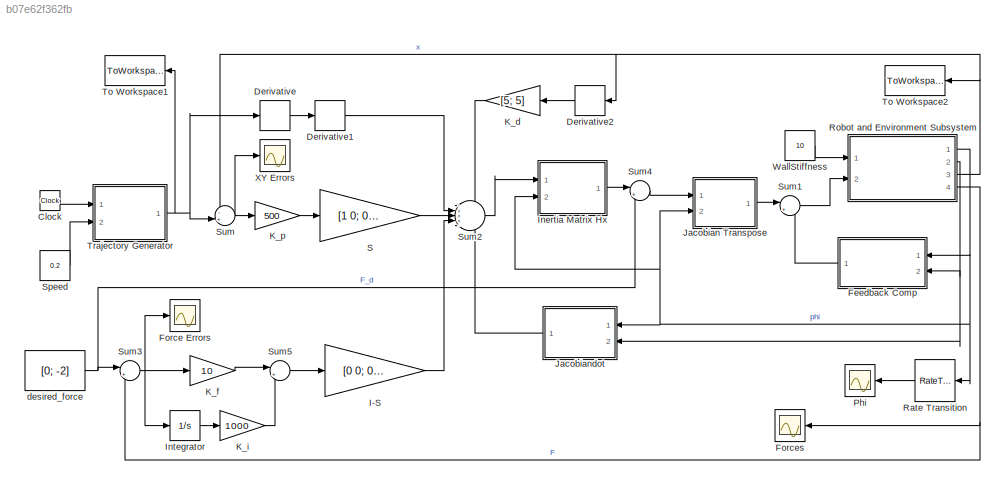
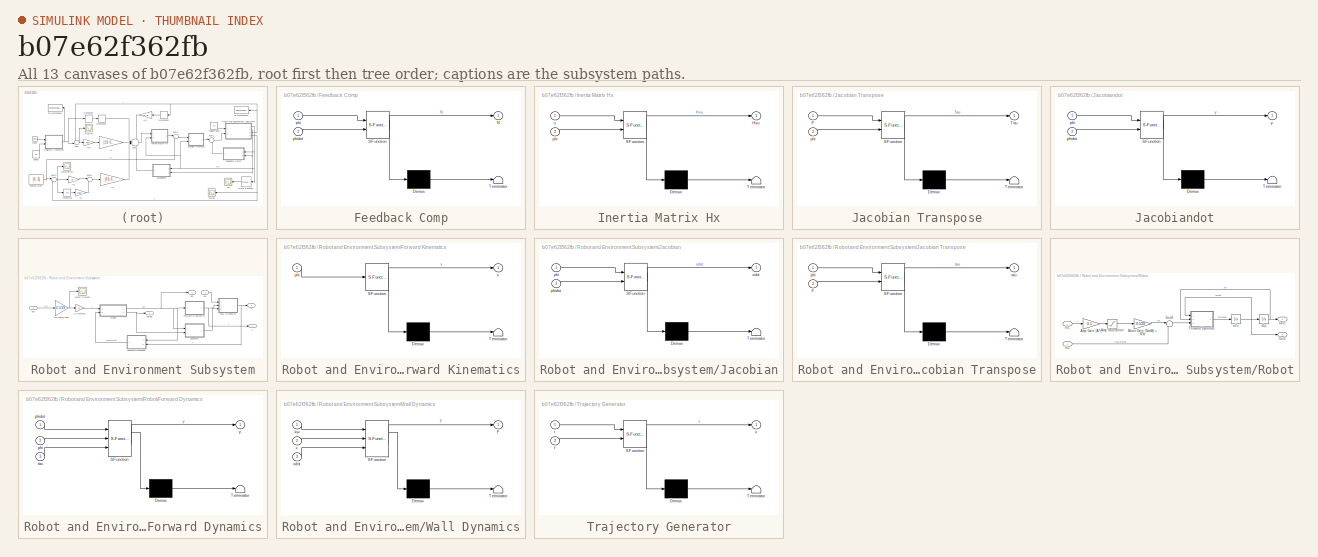
[diagram: thumbnail index - all 13 canvases of the model, root first then tree order]
MODEL slx_b07e62f362fb
KIND model
CONFIG AbsTol = auto
CONFIG EnableMultiTasking = on
CONFIG FixedStep = .002
CONFIG MaxStep = auto
CONFIG MinStep = auto
CONFIG RelTol = 1e-3
CONFIG SampleTimeConstraint = Unconstrained
CONFIG Solver = ode45
CONFIG SolverName = ode45
CONFIG StartTime = 0.0
CONFIG StopTime = 10
BLOCK [Gain]  K_p
  Gain = 500
  OutDataTypeStr = Inherit: Inherit via internal rule
  ParamDataTypeStr = Inherit: Inherit via internal rule
  SaturateOnIntegerOverflow = off
BLOCK [Clock] Clock
BLOCK [Derivative] Derivative
BLOCK [Derivative] Derivative1
BLOCK [Derivative] Derivative2
BLOCK [SubSystem] Feedback Comp
  ErrorFcn = Stateflow.Translate.translate
  PermitHierarchicalResolution = ExplicitOnly
  Ports = [2, 1]
  RequestExecContextInheritance = off
  SFBlockType = MATLAB Function
  TreatAsAtomicUnit = on
BLOCK [Demux] Feedback Comp/ Demux 
  Outputs = 1
  Ports = [1, 1]
BLOCK [S-Function] Feedback Comp/ SFunction 
  EnableBusSupport = on
  FunctionName = sf_sfun
  PortCounts = [2 2]
  Ports = [2, 2]
  SFcnIsStateOwnerBlock = off
  SFunctionDeploymentMode = off
  Tag = Stateflow S-Function hybrid_pi_control 4
BLOCK [Terminator] Feedback Comp/ Terminator 
BLOCK [Outport] Feedback Comp/N
  IconDisplay = Port number
BLOCK [Inport] Feedback Comp/phi
  IconDisplay = Port number
BLOCK [Inport] Feedback Comp/phidot
  IconDisplay = Port number
  Port = 2
BLOCK [Scope] Force Errors
  Floating = off
  NumInputPorts = 1
  Ports = [1]
  ScopeSpecificationString = Simulink.scopes.TimeScopeBlockCfg('CurrentConfiguration', extmgr.ConfigurationSet(extmgr.Configuration('Core','General UI',true),extmgr.Configuration('Core','Source UI',true),extmgr.Configuration('Sources','WiredSimulink',true,'DataLogging',true,'DataLoggingVariableName','F_errors','DataLoggingSaveFormat','StructureWithTime','DataLoggingDecimation','1','DataLoggingDecimateData',true),extmgr.Config...<+1654ch>
BLOCK [Scope] Forces
  Floating = off
  NumInputPorts = 1
  Ports = [1]
  ScopeSpecificationString = Simulink.scopes.TimeScopeBlockCfg('CurrentConfiguration', extmgr.ConfigurationSet(extmgr.Configuration('Core','General UI',true),extmgr.Configuration('Core','Source UI',true),extmgr.Configuration('Sources','WiredSimulink',true,'DataLogging',true,'DataLoggingVariableName','F','DataLoggingSaveFormat','Structure','DataLoggingDecimation','1','DataLoggingDecimateData',true),extmgr.Configuration('Visual...<+1675ch>
BLOCK [Gain] I-S
  Gain = [0 0; 0 1]
  Multiplication = Matrix(K*u)
  OutDataTypeStr = Inherit: Inherit via internal rule
  ParamDataTypeStr = Inherit: Inherit via internal rule
  SaturateOnIntegerOverflow = off
BLOCK [SubSystem] Inertia Matrix Hx
  ErrorFcn = Stateflow.Translate.translate
  PermitHierarchicalResolution = ExplicitOnly
  Ports = [2, 1]
  RequestExecContextInheritance = off
  SFBlockType = MATLAB Function
  TreatAsAtomicUnit = on
BLOCK [Demux] Inertia Matrix Hx/ Demux 
  Outputs = 1
  Ports = [1, 1]
BLOCK [S-Function] Inertia Matrix Hx/ SFunction 
  EnableBusSupport = on
  FunctionName = sf_sfun
  PortCounts = [2 2]
  Ports = [2, 2]
  SFcnIsStateOwnerBlock = off
  SFunctionDeploymentMode = off
  Tag = Stateflow S-Function hybrid_pi_control 3
BLOCK [Terminator] Inertia Matrix Hx/ Terminator 
BLOCK [Outport] Inertia Matrix Hx/Hxu
  IconDisplay = Port number
BLOCK [Inport] Inertia Matrix Hx/phi
  IconDisplay = Port number
  Port = 2
BLOCK [Inport] Inertia Matrix Hx/u
  IconDisplay = Port number
BLOCK [Integrator] Integrator
  Ports = [1, 1]
BLOCK [SubSystem] Jacobian Transpose
  ErrorFcn = Stateflow.Translate.translate
  PermitHierarchicalResolution = ExplicitOnly
  Ports = [2, 1]
  RequestExecContextInheritance = off
  SFBlockType = MATLAB Function
  TreatAsAtomicUnit = on
BLOCK [Demux] Jacobian Transpose/ Demux 
  Outputs = 1
  Ports = [1, 1]
BLOCK [S-Function] Jacobian Transpose/ SFunction 
  EnableBusSupport = on
  FunctionName = sf_sfun
  PortCounts = [2 2]
  Ports = [2, 2]
  SFcnIsStateOwnerBlock = off
  SFunctionDeploymentMode = off
  Tag = Stateflow S-Function hybrid_pi_control 6
BLOCK [Terminator] Jacobian Transpose/ Terminator 
BLOCK [Inport] Jacobian Transpose/F
  IconDisplay = Port number
BLOCK [Outport] Jacobian Transpose/Tau
  IconDisplay = Port number
BLOCK [Inport] Jacobian Transpose/phi
  IconDisplay = Port number
  Port = 2
BLOCK [SubSystem] Jacobiandot
  ErrorFcn = Stateflow.Translate.translate
  PermitHierarchicalResolution = ExplicitOnly
  Ports = [2, 1]
  RequestExecContextInheritance = off
  SFBlockType = MATLAB Function
  TreatAsAtomicUnit = on
BLOCK [Demux] Jacobiandot/ Demux 
  Outputs = 1
  Ports = [1, 1]
BLOCK [S-Function] Jacobiandot/ SFunction 
  EnableBusSupport = on
  FunctionName = sf_sfun
  PortCounts = [2 2]
  Ports = [2, 2]
  SFcnIsStateOwnerBlock = off
  SFunctionDeploymentMode = off
  Tag = Stateflow S-Function hybrid_pi_control 8
BLOCK [Terminator] Jacobiandot/ Terminator 
BLOCK [Inport] Jacobiandot/phi
  IconDisplay = Port number
BLOCK [Inport] Jacobiandot/phidot
  IconDisplay = Port number
  Port = 2
BLOCK [Outport] Jacobiandot/y
  IconDisplay = Port number
BLOCK [Gain] K_d
  Gain = [5; 5]
  OutDataTypeStr = Inherit: Inherit via internal rule
  ParamDataTypeStr = Inherit: Inherit via internal rule
  SaturateOnIntegerOverflow = off
BLOCK [Gain] K_f
  Gain = 10
  OutDataTypeStr = Inherit: Inherit via internal rule
  ParamDataTypeStr = Inherit: Inherit via internal rule
  SaturateOnIntegerOverflow = off
BLOCK [Gain] K_i
  Gain = 1000
  OutDataTypeStr = Inherit: Inherit via internal rule
  ParamDataTypeStr = Inherit: Inherit via internal rule
  SaturateOnIntegerOverflow = off
BLOCK [Scope] Phi
  AttributesFormatString = SampleTime =%<SampleTime>
  Floating = off
  NumInputPorts = 1
  Ports = [1]
  ScopeSpecificationString = Simulink.scopes.TimeScopeBlockCfg('CurrentConfiguration', extmgr.ConfigurationSet(extmgr.Configuration('Core','General UI',true),extmgr.Configuration('Core','Source UI',true),extmgr.Configuration('Sources','WiredSimulink',true,'DataLoggingVariableName','ScopeData1','DataLoggingSaveFormat','StructureWithTime','DataLoggingDecimation','10','DataLoggingDecimateData',true,'SampleTime','0.02'),extmgr.Co...<+1626ch>
BLOCK [RateTransition] Rate Transition
  OutPortSampleTime = 0.05
  OutPortSampleTimeMultiple = 10
  OutPortSampleTimeOpt = Inherit
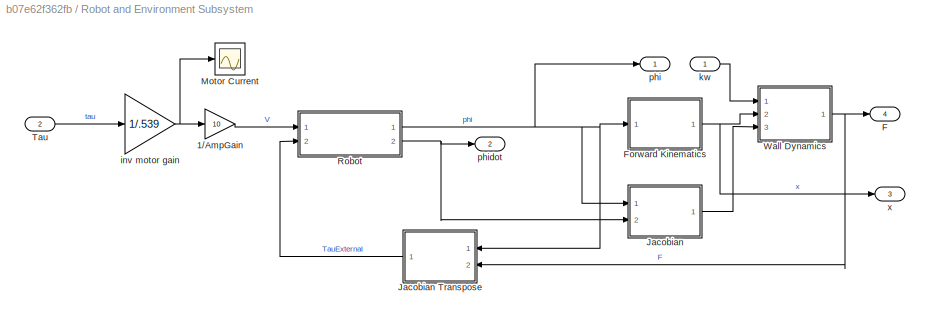
BLOCK [SubSystem] Robot and Environment Subsystem
  Ports = [2, 4]
  RequestExecContextInheritance = off
BLOCK [Gain] Robot and Environment Subsystem/1//AmpGain
  Gain = 10
  OutDataTypeStr = Inherit: Inherit via internal rule
  ParamDataTypeStr = Inherit: Inherit via internal rule
  SaturateOnIntegerOverflow = off
BLOCK [Outport] Robot and Environment Subsystem/F
  IconDisplay = Port number
  Port = 4
BLOCK [SubSystem] Robot and Environment Subsystem/Forward Kinematics
  ErrorFcn = Stateflow.Translate.translate
  PermitHierarchicalResolution = ExplicitOnly
  Ports = [1, 1]
  RequestExecContextInheritance = off
  SFBlockType = MATLAB Function
  TreatAsAtomicUnit = on
BLOCK [Demux] Robot and Environment Subsystem/Forward Kinematics/ Demux 
  Outputs = 1
  Ports = [1, 1]
BLOCK [S-Function] Robot and Environment Subsystem/Forward Kinematics/ SFunction 
  EnableBusSupport = on
  FunctionName = sf_sfun
  PortCounts = [1 2]
  Ports = [1, 2]
  SFcnIsStateOwnerBlock = off
  SFunctionDeploymentMode = off
  Tag = Stateflow S-Function hybrid_pi_control 9
BLOCK [Terminator] Robot and Environment Subsystem/Forward Kinematics/ Terminator 
BLOCK [Inport] Robot and Environment Subsystem/Forward Kinematics/phi
  IconDisplay = Port number
BLOCK [Outport] Robot and Environment Subsystem/Forward Kinematics/x
  IconDisplay = Port number
BLOCK [SubSystem] Robot and Environment Subsystem/Jacobian
  ErrorFcn = Stateflow.Translate.translate
  PermitHierarchicalResolution = ExplicitOnly
  Ports = [2, 1]
  RequestExecContextInheritance = off
  SFBlockType = MATLAB Function
  TreatAsAtomicUnit = on
BLOCK [SubSystem] Robot and Environment Subsystem/Jacobian Transpose
  ErrorFcn = Stateflow.Translate.translate
  PermitHierarchicalResolution = ExplicitOnly
  Ports = [2, 1]
  RequestExecContextInheritance = off
  SFBlockType = MATLAB Function
  TreatAsAtomicUnit = on
BLOCK [Demux] Robot and Environment Subsystem/Jacobian Transpose/ Demux 
  Outputs = 1
  Ports = [1, 1]
BLOCK [S-Function] Robot and Environment Subsystem/Jacobian Transpose/ SFunction 
  EnableBusSupport = on
  FunctionName = sf_sfun
  PortCounts = [2 2]
  Ports = [2, 2]
  SFcnIsStateOwnerBlock = off
  SFunctionDeploymentMode = off
  Tag = Stateflow S-Function hybrid_pi_control 2
BLOCK [Terminator] Robot and Environment Subsystem/Jacobian Transpose/ Terminator 
BLOCK [Inport] Robot and Environment Subsystem/Jacobian Transpose/F
  IconDisplay = Port number
  Port = 2
BLOCK [Inport] Robot and Environment Subsystem/Jacobian Transpose/phi
  IconDisplay = Port number
BLOCK [Outport] Robot and Environment Subsystem/Jacobian Transpose/tau
  IconDisplay = Port number
BLOCK [Demux] Robot and Environment Subsystem/Jacobian/ Demux 
  Outputs = 1
  Ports = [1, 1]
BLOCK [S-Function] Robot and Environment Subsystem/Jacobian/ SFunction 
  EnableBusSupport = on
  FunctionName = sf_sfun
  PortCounts = [2 2]
  Ports = [2, 2]
  SFcnIsStateOwnerBlock = off
  SFunctionDeploymentMode = off
  Tag = Stateflow S-Function hybrid_pi_control 1
BLOCK [Terminator] Robot and Environment Subsystem/Jacobian/ Terminator 
BLOCK [Inport] Robot and Environment Subsystem/Jacobian/phi
  IconDisplay = Port number
BLOCK [Inport] Robot and Environment Subsystem/Jacobian/phidot
  IconDisplay = Port number
  Port = 2
BLOCK [Outport] Robot and Environment Subsystem/Jacobian/xdot
  IconDisplay = Port number
BLOCK [Scope] Robot and Environment Subsystem/Motor Current
  Floating = off
  NumInputPorts = 1
  Ports = [1]
  ScopeSpecificationString = Simulink.scopes.TimeScopeBlockCfg('CurrentConfiguration', extmgr.ConfigurationSet(extmgr.Configuration('Core','General UI',true),extmgr.Configuration('Core','Source UI',true),extmgr.Configuration('Sources','WiredSimulink',true,'DataLoggingVariableName','ScopeData1','DataLoggingSaveFormat','StructureWithTime','DataLoggingDecimation','1','DataLoggingDecimateData',true),extmgr.Configuration('Visuals'...<+1770ch>
BLOCK [SubSystem] Robot and Environment Subsystem/Robot
  Ports = [2, 2]
  RequestExecContextInheritance = off
BLOCK [Gain] Robot and Environment Subsystem/Robot/Amp Gain (A//V)
  Gain = 0.1
  OutDataTypeStr = Inherit: Inherit via internal rule
  ParamDataTypeStr = Inherit: Inherit via internal rule
  SaturateOnIntegerOverflow = off
BLOCK [Saturate] Robot and Environment Subsystem/Robot/Amp Saturation
  InputPortMap = u0
  LowerLimit = -1
  Ports = [1, 1]
  UpperLimit = 1
  ZeroCross = off
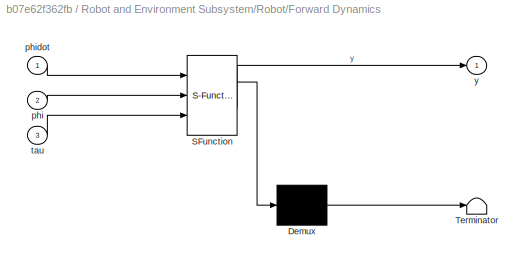
BLOCK [SubSystem] Robot and Environment Subsystem/Robot/Forward Dynamics
  ErrorFcn = Stateflow.Translate.translate
  PermitHierarchicalResolution = ExplicitOnly
  Ports = [3, 1]
  RequestExecContextInheritance = off
  SFBlockType = MATLAB Function
  TreatAsAtomicUnit = on
BLOCK [Demux] Robot and Environment Subsystem/Robot/Forward Dynamics/ Demux 
  Outputs = 1
  Ports = [1, 1]
BLOCK [S-Function] Robot and Environment Subsystem/Robot/Forward Dynamics/ SFunction 
  EnableBusSupport = on
  FunctionName = sf_sfun
  PortCounts = [3 2]
  Ports = [3, 2]
  SFcnIsStateOwnerBlock = off
  SFunctionDeploymentMode = off
  Tag = Stateflow S-Function hybrid_pi_control 5
BLOCK [Terminator] Robot and Environment Subsystem/Robot/Forward Dynamics/ Terminator 
BLOCK [Inport] Robot and Environment Subsystem/Robot/Forward Dynamics/phi
  IconDisplay = Port number
  Port = 2
BLOCK [Inport] Robot and Environment Subsystem/Robot/Forward Dynamics/phidot
  IconDisplay = Port number
BLOCK [Inport] Robot and Environment Subsystem/Robot/Forward Dynamics/tau
  IconDisplay = Port number
  Port = 3
BLOCK [Outport] Robot and Environment Subsystem/Robot/Forward Dynamics/y
  IconDisplay = Port number
BLOCK [Inport] Robot and Environment Subsystem/Robot/In1
  IconDisplay = Port number
BLOCK [Inport] Robot and Environment Subsystem/Robot/In2
  IconDisplay = Port number
  Port = 2
BLOCK [Gain] Robot and Environment Subsystem/Robot/Motor Gain (Nm//A) = N*kt
  Gain = 0.539
  OutDataTypeStr = Inherit: Inherit via internal rule
  ParamDataTypeStr = Inherit: Inherit via internal rule
  SaturateOnIntegerOverflow = off
BLOCK [Outport] Robot and Environment Subsystem/Robot/Out1
  IconDisplay = Port number
BLOCK [Outport] Robot and Environment Subsystem/Robot/Out2
  IconDisplay = Port number
  Port = 2
BLOCK [Sum] Robot and Environment Subsystem/Robot/Sum2
  IconShape = round
  InputSameDT = off
  Inputs = |+-
  OutDataTypeStr = Inherit: Inherit via internal rule
  Ports = [2, 1]
  SaturateOnIntegerOverflow = off
BLOCK [Integrator] Robot and Environment Subsystem/Robot/a2v
  Ports = [1, 1]
BLOCK [Integrator] Robot and Environment Subsystem/Robot/v2p
  InitialCondition = [0.3109;-0.4922]
  Ports = [1, 1]
BLOCK [Inport] Robot and Environment Subsystem/Tau
  IconDisplay = Port number
  Port = 2
BLOCK [SubSystem] Robot and Environment Subsystem/Wall Dynamics
  ErrorFcn = Stateflow.Translate.translate
  PermitHierarchicalResolution = ExplicitOnly
  Ports = [3, 1]
  RequestExecContextInheritance = off
  SFBlockType = MATLAB Function
  TreatAsAtomicUnit = on
BLOCK [Demux] Robot and Environment Subsystem/Wall Dynamics/ Demux 
  Outputs = 1
  Ports = [1, 1]
BLOCK [S-Function] Robot and Environment Subsystem/Wall Dynamics/ SFunction 
  EnableBusSupport = on
  FunctionName = sf_sfun
  PortCounts = [3 2]
  Ports = [3, 2]
  SFcnIsStateOwnerBlock = off
  SFunctionDeploymentMode = off
  Tag = Stateflow S-Function hybrid_pi_control 10
BLOCK [Terminator] Robot and Environment Subsystem/Wall Dynamics/ Terminator 
BLOCK [Outport] Robot and Environment Subsystem/Wall Dynamics/F
  IconDisplay = Port number
BLOCK [Inport] Robot and Environment Subsystem/Wall Dynamics/kw
  IconDisplay = Port number
BLOCK [Inport] Robot and Environment Subsystem/Wall Dynamics/x
  IconDisplay = Port number
  Port = 2
BLOCK [Inport] Robot and Environment Subsystem/Wall Dynamics/xdot
  IconDisplay = Port number
  Port = 3
BLOCK [Gain] Robot and Environment Subsystem/inv motor gain
  Gain = 1/.539
  OutDataTypeStr = Inherit: Inherit via internal rule
  ParamDataTypeStr = Inherit: Inherit via internal rule
  SaturateOnIntegerOverflow = off
BLOCK [Inport] Robot and Environment Subsystem/kw
  IconDisplay = Port number
BLOCK [Outport] Robot and Environment Subsystem/phi
  IconDisplay = Port number
BLOCK [Outport] Robot and Environment Subsystem/phidot
  IconDisplay = Port number
  Port = 2
BLOCK [Outport] Robot and Environment Subsystem/x
  IconDisplay = Port number
  Port = 3
BLOCK [Gain] S
  Gain = [1 0; 0 0]
  Multiplication = Matrix(K*u)
  OutDataTypeStr = Inherit: Inherit via internal rule
  ParamDataTypeStr = Inherit: Inherit via internal rule
  SaturateOnIntegerOverflow = off
BLOCK [Constant] Speed
  AttributesFormatString = (circles/sec)
  Value = 0.2
BLOCK [Sum] Sum
  IconShape = round
  InputSameDT = off
  Inputs = -+|
  OutDataTypeStr = Inherit: Inherit via internal rule
  Ports = [2, 1]
  SaturateOnIntegerOverflow = off
BLOCK [Sum] Sum1
  IconShape = round
  InputSameDT = off
  Inputs = |++
  OutDataTypeStr = Inherit: Inherit via internal rule
  Ports = [2, 1]
  SaturateOnIntegerOverflow = off
BLOCK [Sum] Sum2
  IconShape = round
  InputSameDT = off
  Inputs = -+++-
  OutDataTypeStr = Inherit: Inherit via internal rule
  Ports = [5, 1]
  SaturateOnIntegerOverflow = off
BLOCK [Sum] Sum3
  IconShape = round
  InputSameDT = off
  Inputs = |+-
  OutDataTypeStr = Inherit: Inherit via internal rule
  Ports = [2, 1]
  SaturateOnIntegerOverflow = off
BLOCK [Sum] Sum4
  IconShape = round
  InputSameDT = off
  Inputs = |++
  OutDataTypeStr = Inherit: Inherit via internal rule
  Ports = [2, 1]
  SaturateOnIntegerOverflow = off
BLOCK [Sum] Sum5
  IconShape = round
  InputSameDT = off
  Inputs = |++
  OutDataTypeStr = Inherit: Inherit via internal rule
  Ports = [2, 1]
  SaturateOnIntegerOverflow = off
BLOCK [ToWorkspace] To Workspace1
  MaxDataPoints = inf
  Ports = [1]
  SampleTime = -1
  VariableName = xy_d
BLOCK [ToWorkspace] To Workspace2
  MaxDataPoints = inf
  Ports = [1]
  SampleTime = -1
  VariableName = xy
BLOCK [SubSystem] Trajectory Generator
  ErrorFcn = Stateflow.Translate.translate
  PermitHierarchicalResolution = ExplicitOnly
  Ports = [2, 1]
  RequestExecContextInheritance = off
  SFBlockType = MATLAB Function
  TreatAsAtomicUnit = on
BLOCK [Demux] Trajectory Generator/ Demux 
  Outputs = 1
  Ports = [1, 1]
BLOCK [S-Function] Trajectory Generator/ SFunction 
  EnableBusSupport = on
  FunctionName = sf_sfun
  PortCounts = [2 2]
  Ports = [2, 2]
  SFcnIsStateOwnerBlock = off
  SFunctionDeploymentMode = off
  Tag = Stateflow S-Function hybrid_pi_control 7
BLOCK [Terminator] Trajectory Generator/ Terminator 
BLOCK [Inport] Trajectory Generator/f
  IconDisplay = Port number
  Port = 2
BLOCK [Inport] Trajectory Generator/t
  IconDisplay = Port number
BLOCK [Outport] Trajectory Generator/x
  IconDisplay = Port number
BLOCK [Constant] WallStiffness
  AttributesFormatString = (N/mm)
  Value = 10
BLOCK [Scope] XY Errors
  Floating = off
  NumInputPorts = 1
  Ports = [1]
  ScopeSpecificationString = Simulink.scopes.TimeScopeBlockCfg('CurrentConfiguration', extmgr.ConfigurationSet(extmgr.Configuration('Core','General UI',true),extmgr.Configuration('Core','Source UI',true),extmgr.Configuration('Sources','WiredSimulink',true,'DataLogging',true,'DataLoggingVariableName','xy_errors','DataLoggingSaveFormat','StructureWithTime','DataLoggingDecimation','1','DataLoggingDecimateData',true),extmgr.Confi...<+1652ch>
BLOCK [Constant] desired_force
  Value = [0; -2]
LINE  K_p:1 -> S:1
LINE Clock:1 -> Trajectory Generator:1
LINE Derivative1:1 -> Sum2:2
LINE Derivative2:1 -> K_d:1
LINE Derivative:1 -> Derivative1:1
LINE Feedback Comp:1 -> Sum1:2
LINE I-S:1 -> Sum2:4
LINE Inertia Matrix Hx:1 -> Sum4:1
LINE Integrator:1 -> K_i:1
LINE Jacobian Transpose:1 -> Sum1:1
LINE Jacobiandot:1 -> Sum2:5
LINE K_d:1 -> Sum2:1
LINE K_f:1 -> Sum5:1
LINE K_i:1 -> Sum5:2
LINE Rate Transition:1 -> Phi:1
LINE Robot and Environment Subsystem/1//AmpGain:1 -> Robot and Environment Subsystem/Robot:1
NET Robot and Environment Subsystem/Forward Kinematics:1 -> Robot and Environment Subsystem/Wall Dynamics:2, Robot and Environment Subsystem/x:1
LINE Robot and Environment Subsystem/Jacobian Transpose:1 -> Robot and Environment Subsystem/Robot:2
LINE Robot and Environment Subsystem/Jacobian:1 -> Robot and Environment Subsystem/Wall Dynamics:3
LINE Robot and Environment Subsystem/Robot/Amp Gain (A//V):1 -> Robot and Environment Subsystem/Robot/Amp Saturation:1
LINE Robot and Environment Subsystem/Robot/Amp Saturation:1 -> Robot and Environment Subsystem/Robot/Motor Gain (Nm//A) = N*kt:1
LINE Robot and Environment Subsystem/Robot/Forward Dynamics:1 -> Robot and Environment Subsystem/Robot/a2v:1
LINE Robot and Environment Subsystem/Robot/In1:1 -> Robot and Environment Subsystem/Robot/Amp Gain (A//V):1
LINE Robot and Environment Subsystem/Robot/In2:1 -> Robot and Environment Subsystem/Robot/Sum2:2
LINE Robot and Environment Subsystem/Robot/Motor Gain (Nm//A) = N*kt:1 -> Robot and Environment Subsystem/Robot/Sum2:1
LINE Robot and Environment Subsystem/Robot/Sum2:1 -> Robot and Environment Subsystem/Robot/Forward Dynamics:3
NET Robot and Environment Subsystem/Robot/a2v:1 -> Robot and Environment Subsystem/Robot/Forward Dynamics:1, Robot and Environment Subsystem/Robot/Out2:1, Robot and Environment Subsystem/Robot/v2p:1
NET Robot and Environment Subsystem/Robot/v2p:1 -> Robot and Environment Subsystem/Robot/Forward Dynamics:2, Robot and Environment Subsystem/Robot/Out1:1
NET Robot and Environment Subsystem/Robot:1 -> Robot and Environment Subsystem/Forward Kinematics:1, Robot and Environment Subsystem/Jacobian Transpose:1, Robot and Environment Subsystem/Jacobian:1, Robot and Environment Subsystem/phi:1
NET Robot and Environment Subsystem/Robot:2 -> Robot and Environment Subsystem/Jacobian:2, Robot and Environment Subsystem/phidot:1
LINE Robot and Environment Subsystem/Tau:1 -> Robot and Environment Subsystem/inv motor gain:1
NET Robot and Environment Subsystem/Wall Dynamics:1 -> Robot and Environment Subsystem/F:1, Robot and Environment Subsystem/Jacobian Transpose:2
NET Robot and Environment Subsystem/inv motor gain:1 -> Robot and Environment Subsystem/1//AmpGain:1, Robot and Environment Subsystem/Motor Current:1
LINE Robot and Environment Subsystem/kw:1 -> Robot and Environment Subsystem/Wall Dynamics:1
NET Robot and Environment Subsystem:1 -> Feedback Comp:1, Inertia Matrix Hx:2, Jacobian Transpose:2, Jacobiandot:1, Rate Transition:1
NET Robot and Environment Subsystem:2 -> Feedback Comp:2, Jacobiandot:2
NET Robot and Environment Subsystem:3 -> Derivative2:1, Sum:1, To Workspace2:1
NET Robot and Environment Subsystem:4 -> Forces:1, Sum3:2
LINE S:1 -> Sum2:3
LINE Speed:1 -> Trajectory Generator:2
LINE Sum1:1 -> Robot and Environment Subsystem:2
LINE Sum2:1 -> Inertia Matrix Hx:1
NET Sum3:1 -> Force Errors:1, Integrator:1, K_f:1
LINE Sum4:1 -> Jacobian Transpose:1
LINE Sum5:1 -> I-S:1
NET Sum:1 ->  K_p:1, XY Errors:1
NET Trajectory Generator:1 -> Derivative:1, Sum:2, To Workspace1:1
LINE WallStiffness:1 -> Robot and Environment Subsystem:1
NET desired_force:1 -> Sum3:1, Sum4:2
note: NET lines group one-source signal fan-out (src -> all destinations, sorted); 1:1 wires keep LINE
CHART Robot and Environment
Subsystem/Jacobian states=1 transitions=1
  STATE_LABEL 'eML_blk_kernel()'
  STATE_LABEL 'SCRIPT:\nfunction xdot = fcn(phi, phidot)\n% This block supports an embeddable subset of the MATLAB language.\n% See the help menu for details. \na1=0.15;\na2=0.15;\n\nJ11 = -a1*sin(phi(1));\nJ12 = -a2*sin(phi(2));\nJ21 = a1*cos(phi(1));\nJ22 = a2*cos(phi(2));\n\nJ = [J11 J12; J21 J22];\n\nxdot = J*phidot;\n'
CHART Robot and Environment
Subsystem/Jacobian
Transpose states=1 transitions=1
  STATE_LABEL 'eML_blk_kernel()'
  STATE_LABEL "SCRIPT:\nfunction tau = fcn(phi, F)\n% This block supports an embeddable subset of the MATLAB language.\n% See the help menu for details. \na1=0.15;\na2=0.15;\n\nJ11 = -a1*sin(phi(1));\nJ12 = -a2*sin(phi(2));\nJ21 = a1*cos(phi(1));\nJ22 = a2*cos(phi(2));\n\nJ = [J11 J12; J21 J22];\n\ntau = J'*F;\n"
CHART Inertia Matrix
Hx states=1 transitions=1
  STATE_LABEL 'eML_blk_kernel()'
  STATE_LABEL 'SCRIPT:\nfunction Hxu = fcn(u,phi)\n% This block supports an embeddable subset of the MATLAB language.\n% See the help menu for details. \n\n\na1 = 0.15;  % link 1 length\na2 = 0.15;  % link 2 length\nm1 = 0.092;  % link 1 mass  \nm2 = 0.077; % link 2 mas\nr01 = 0.062; % link 1 center of mass\nr12 = 0.036; % link 2 COM\nI1 = 0.64e-3;  % link 1 inertia\nI2 = 0.30e-3;  % link 2 inertia\nJm1 = 0.65e-6; % motor ine...<+446ch>'
CHART Feedback Comp states=1 transitions=1
  STATE_LABEL 'eML_blk_kernel()'
  STATE_LABEL 'SCRIPT:\nfunction N = fcn(phi, phidot)\n% This block supports an embeddable subset of the MATLAB language.\n% See the help menu for details. \n\n\na1 = 0.15;  % link 1 length\na2 = 0.15;  % link 2 length\nm1 = 0.092;  % link 1 mass  \nm2 = 0.077; % link 2 mas\nr01 = 0.062; % link 1 center of mass\nr12 = 0.036; % link 2 COM\nI1 = 0.64e-3;  % link 1 inertia\nI2 = 0.30e-3;  % link 2 inertia\nJm1 = 0.65e-6; % motor...<+539ch>'
CHART Robot and Environment
Subsystem/Robot/Forward
Dynamics states=1 transitions=1
  STATE_LABEL 'eML_blk_kernel()'
  STATE_LABEL 'SCRIPT:\nfunction y = fcn(phidot,phi,tau)\n% This block supports an embeddable subset of the MATLAB language.\n% See the help menu for details. \n\na1 = 0.15;  % link 1 length\na2 = 0.15;  % link 2 length\nm1 = 0.092;  % link 1 mass  \nm2 = 0.077; % link 2 mas\nr01 = 0.062; % link 1 center of mass\nr12 = 0.036; % link 2 COM\nI1 = 0.64e-3;  % link 1 inertia\nI2 = 0.30e-3;  % link 2 inertia\nJm1 = 0.65e-6; % mot...<+710ch>'
CHART Jacobian
Transpose states=1 transitions=1
  STATE_LABEL 'eML_blk_kernel()'
  STATE_LABEL "SCRIPT:\nfunction Tau = fcn(F,phi)\n% This block supports an embeddable subset of the MATLAB language.\n% See the help menu for details. \na1=0.15;\na2=0.15;\n\nJ11 = -a1*sin(phi(1));\nJ12 = -a2*sin(phi(2));\nJ21 = a1*cos(phi(1));\nJ22 = a2*cos(phi(2));\n\nJ = [J11 J12; J21 J22];\n\nTau = J'*F;\n"
CHART Trajectory 
Generator states=1 transitions=1
  STATE_LABEL 'eML_blk_kernel()'
  STATE_LABEL 'SCRIPT:\nfunction x = fcn(t,f)\n% This block supports an embeddable subset of the MATLAB language.\n% See the help menu for details. \nx = [0;0];\n\nh = -0.025; % wall height\n\nif t<0.5  % accelerate into circling trajectory\n    x(1) = 0.075*cos(2*pi*f*t^2) + 0.2;\n    x(2) = h;\nelse  % constant speed circling of-  radius 0.075 about x=[0.125,0.1]\n    x(1) = 0.075*cos(2*pi*f*(t-0.25)) + 0.2;\n    x(2) = h;...<+4ch>'
CHART Jacobiandot states=1 transitions=1
  STATE_LABEL 'eML_blk_kernel()'
  STATE_LABEL 'SCRIPT:\nfunction y = fcn(phi, phidot)\n% This block supports an embeddable subset of the MATLAB language.\n% See the help menu for details. \na1=0.15;\na2=0.15;\n\n% J11 = -a1*sin(phi(1));\n% J12 = -a2*sin(phi(2));\n% J21 = a1*cos(phi(1));\n% J22 = a2*cos(phi(2));\n\nJdot11 = -a1*cos(phi(1))*phidot(1);\nJdot12 = -a2*cos(phi(2))*phidot(2);\nJdot21 = -a1*sin(phi(1))*phidot(1);\nJdot22 = -a1*sin(phi(2))*phidot(2);...<+59ch>'
CHART Robot and Environment
Subsystem/Forward
Kinematics states=1 transitions=1
  STATE_LABEL 'eML_blk_kernel()'
  STATE_LABEL 'SCRIPT:\nfunction x = fcn(phi)\n% This block supports an embeddable subset of the MATLAB language.\n% See the help menu for details. \n\na1=0.15;\na2=0.15;\nx = [0;0];\nx(1) = a1*cos(phi(1))+a2*cos(phi(2));\nx(2) = a1*sin(phi(1))+a2*sin(phi(2));\n'
CHART Robot and Environment
Subsystem/Wall Dynamics states=1 transitions=1
  STATE_LABEL 'eML_blk_kernel()'
  STATE_LABEL 'SCRIPT:\nfunction F = fcn(kw,x,xdot)\n% This block supports an embeddable subset of the MATLAB language.\n% See the help menu for details. \n\n% kw = wall stiffness in N/mm, e.g. 1 N/mm\nbw = 0.01; % wall damping in N*s/mm\n\nh = -0.025; % wall height\n\nF = [0;0];\n\nif x(2)<h % force only exists if robot penetrates surface\n    F(2) = (kw*1000)*(x(2)-h) + bw*1000*xdot(2);\n    F(2) = min(0,F(2)); % robot can ...<+30ch>'
